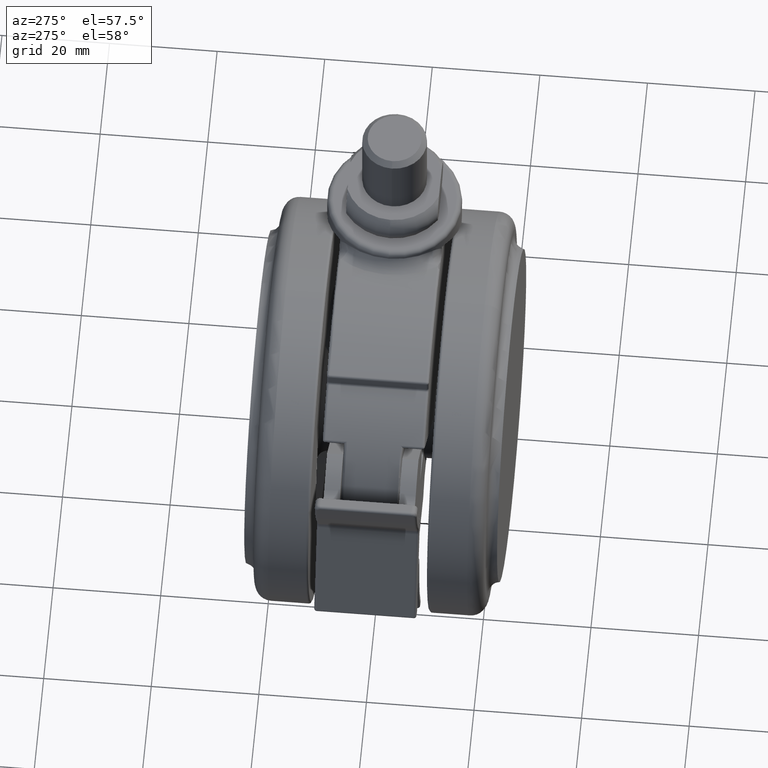
[diagram: clean part render]
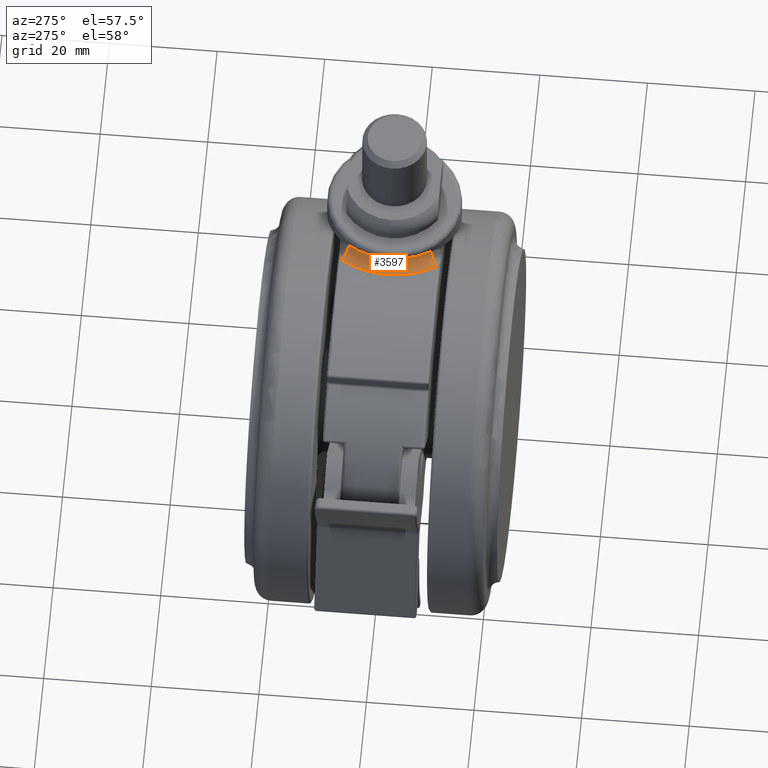
[diagram: same view with one face highlighted and labeled with its STEP entity id]
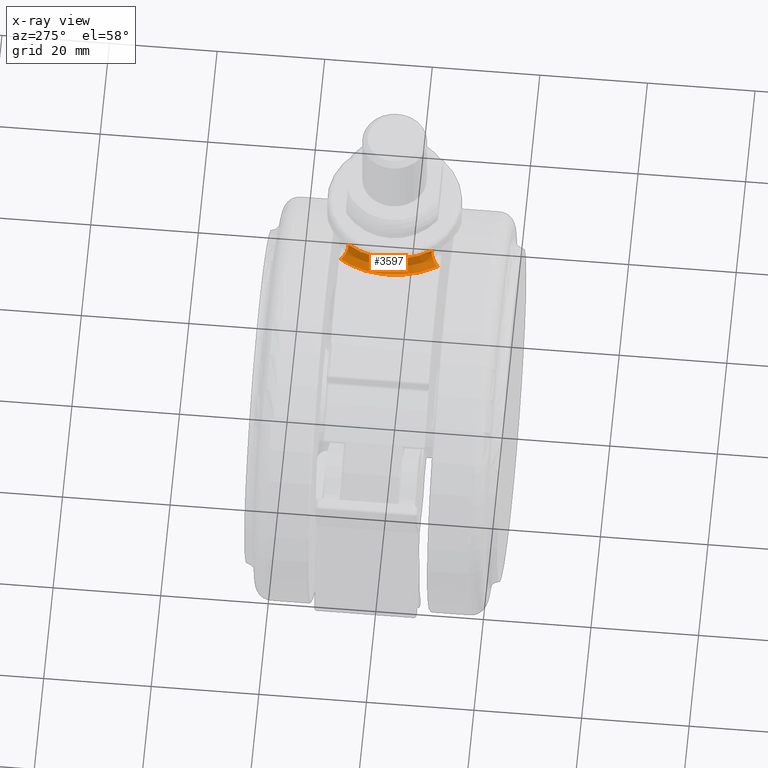
[diagram: x-ray of the same camera — body ghosted, the highlighted face saturated]
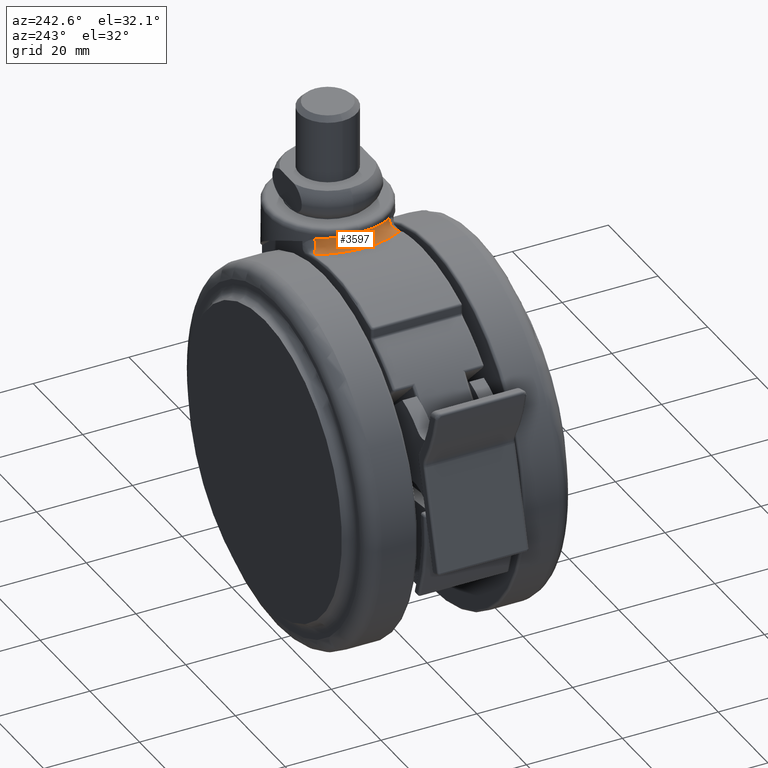
[diagram: same view with one face highlighted and labeled with its STEP entity id]
A machine part, auxiliary view. The second image highlights one B-rep face of the part: STEP entity #3597.
The next image is the same camera in x-ray: the body ghosted, the highlighted face saturated — about 0% of this face is hidden behind the body in this view.
A second angle (auxiliary view) of the same face is appended — the face is thin or edge-on in the first view.
In plain terms, the highlighted face is a freeform B-spline surface patch.
Its self-contained STEP definition (entity closure, byte-faithful):
#125 = CARTESIAN_POINT ( 'NONE',  ( -10.00387822789190500, -7.501971014198679700, -4.309705399789292500 ) ) ;
#153 = CARTESIAN_POINT ( 'NONE',  ( -11.29003087749790700, -5.409977758597722000, -1.605955561507322200 ) ) ;
#157 = CARTESIAN_POINT ( 'NONE',  ( -11.36881700090219900, -8.999999999999799300, -1.954537490956569800 ) ) ;
#183 = CARTESIAN_POINT ( 'NONE',  ( -14.77873273456547500, -0.8035988518365272400, -3.365267360489900800 ) ) ;
#212 = CARTESIAN_POINT ( 'NONE',  ( -12.38764902925202600, 1.706899129396034900, -3.709782561560228200 ) ) ;
#243 = CARTESIAN_POINT ( 'NONE',  ( -11.55916174110943300, 4.770613284342056600, -1.553471477091423500 ) ) ;
#270 = CARTESIAN_POINT ( 'NONE',  ( -11.80583892490691900, 9.000000000000207800, -3.906206478756240900 ) ) ;
#290 = CARTESIAN_POINT ( 'NONE',  ( -14.46055519043960800, 3.201425114573142900, -3.411173859305353800 ) ) ;
#310 = CARTESIAN_POINT ( 'NONE',  ( -12.03197600258147100, -3.459614855445032300, -1.464037963532014200 ) ) ;
#348 = CARTESIAN_POINT ( 'NONE',  ( -11.80583892490720100, -8.999999999999799300, -3.906206478756240100 ) ) ;
#439 = CARTESIAN_POINT ( 'NONE',  ( -11.56263579329884200, 4.762142757172538800, -1.552792187675227800 ) ) ;
#778 = AXIS2_PLACEMENT_3D ( 'NONE', #157, #4914, #833 ) ;
#827 = CARTESIAN_POINT ( 'NONE',  ( -11.62813341630660700, -4.638219213165355000, -3.882104872917183400 ) ) ;
#833 = DIRECTION ( 'NONE',  ( -0.7840563448898070200, -0.6206896551724024900, 0.0000000000000000000 ) ) ;
#858 = CARTESIAN_POINT ( 'NONE',  ( -12.50022857496705700, -0.6927576308935864400, -1.384748286381915200 ) ) ;
#895 = CARTESIAN_POINT ( 'NONE',  ( -14.45399381680682900, 3.233216678118739900, -3.412146396237270500 ) ) ;
#911 =( BOUNDED_SURFACE ( )  B_SPLINE_SURFACE ( 3, 2, ( 
 ( #6196, #125, #1484 ),
 ( #6220, #2178, #6917 ),
 ( #2857, #7553, #3560 ),
 ( #8223, #4252, #153 ),
 ( #4908, #827, #5577 ),
 ( #1514, #6253, #2212 ),
 ( #6950, #2887, #7577 ),
 ( #3586, #8253, #4275 ),
 ( #183, #4942, #858 ),
 ( #5603, #1539, #6288 ),
 ( #2242, #6978, #2921 ),
 ( #7608, #3615, #8283 ),
 ( #4306, #212, #4972 ),
 ( #895, #5627, #1572 ),
 ( #6319, #2270, #7002 ),
 ( #2947, #7642, #3647 ),
 ( #8316, #4341, #243 ),
 ( #5000, #923, #5656 ),
 ( #1599, #6343, #2296 ),
 ( #7028, #2977, #7671 ),
 ( #3680, #8343, #4370 ),
 ( #270, #5028, #949 ) ),
 .UNSPECIFIED., .F., .F., .T. ) 
 B_SPLINE_SURFACE_WITH_KNOTS ( ( 4, 2, 2, 2, 2, 2, 2, 2, 2, 2, 4 ),
 ( 3, 3 ),
 ( 0.04484670150587637800, 0.04727635565138270400, 0.04970600979688903600, 0.05213566394239536900, 0.05456531808790170100, 0.05578014516065486800, 0.05699497223340803400, 0.05942462637891436600, 0.06063945345166753300, 0.06185428052442069900, 0.06428393466992703100 ),
 ( 0.0000000000000000000, 1.000000000000000000 ),
 .UNSPECIFIED. ) 
 GEOMETRIC_REPRESENTATION_ITEM ( )  RATIONAL_B_SPLINE_SURFACE ( (
 ( 1.000000000000000000, 0.6436905676697364200, 1.000000000000000000),
 ( 1.000000000000000000, 0.6446167195811878200, 1.000000000000000000),
 ( 1.000000000000000000, 0.6459663824866793700, 1.000000000000000000),
 ( 1.000000000000000000, 0.6488008187546942000, 1.000000000000000000),
 ( 1.000000000000000000, 0.6502913982318588900, 1.000000000000000000),
 ( 1.000000000000000000, 0.6529308301003523600, 1.000000000000000000),
 ( 1.000000000000000000, 0.6540806104083222200, 1.000000000000000000),
 ( 1.000000000000000000, 0.6556257350229580700, 1.000000000000000000),
 ( 1.000000000000000000, 0.6560349305132873200, 1.000000000000000000),
 ( 1.000000000000000000, 0.6560325418615674500, 1.000000000000000000),
 ( 1.000000000000000000, 0.6559301682245548500, 1.000000000000000000),
 ( 1.000000000000000000, 0.6555237969605876000, 1.000000000000000000),
 ( 1.000000000000000000, 0.6552189024531365200, 1.000000000000000000),
 ( 1.000000000000000000, 0.6540494927733462300, 1.000000000000000000),
 ( 1.000000000000000000, 0.6529229353915987400, 1.000000000000000000),
 ( 1.000000000000000000, 0.6509506497409466300, 1.000000000000000000),
 ( 1.000000000000000000, 0.6502471699235160600, 1.000000000000000000),
 ( 1.000000000000000000, 0.6488029830699276700, 1.000000000000000000),
 ( 1.000000000000000000, 0.6480638441045465400, 1.000000000000000000),
 ( 1.000000000000000000, 0.6459337708149696100, 1.000000000000000000),
 ( 1.000000000000000000, 0.6446147516755581500, 1.000000000000000000),
 ( 1.000000000000000000, 0.6436905676697354300, 1.000000000000000000) ) ) 
 REPRESENTATION_ITEM ( '' )  SURFACE ( )  );
#923 = CARTESIAN_POINT ( 'NONE',  ( -11.35089415407361500, 5.249042571531141700, -3.949889673651641800 ) ) ;
#945 = CARTESIAN_POINT ( 'NONE',  ( -12.71933375164516100, -7.671364508898795600, -3.711651338640235700 ) ) ;
#949 = CARTESIAN_POINT ( 'NONE',  ( -9.800704311122354200, 7.758620689655354700, -1.954537490956574000 ) ) ;
#971 = CARTESIAN_POINT ( 'NONE',  ( -13.89717161774413700, 5.120679773975008500, -3.499709419589013900 ) ) ;
#997 = CARTESIAN_POINT ( 'NONE',  ( -11.28930404226374100, -5.411346617770612400, -1.606111625444742300 ) ) ;
#1020 = CIRCLE ( 'NONE', #778, 1.999999999999999300 ) ;
#1124 = CARTESIAN_POINT ( 'NONE',  ( -12.03351875885955000, 3.453605914257576300, -1.463773444533736700 ) ) ;
#1484 = CARTESIAN_POINT ( 'NONE',  ( -9.800704311122588700, -7.758620689655004700, -1.954537490956508500 ) ) ;
#1514 = CARTESIAN_POINT ( 'NONE',  ( -14.26410270560532600, -4.009457523853277500, -3.440381182265532400 ) ) ;
#1539 = CARTESIAN_POINT ( 'NONE',  ( -12.49989066632533900, 0.3434227209801028500, -3.685703853844811500 ) ) ;
#1572 = CARTESIAN_POINT ( 'NONE',  ( -12.20535070704289500, 2.787255756967012700, -1.434127537485408300 ) ) ;
#1599 = CARTESIAN_POINT ( 'NONE',  ( -13.25494946504402100, 6.642797806996770600, -3.611115861060902400 ) ) ;
#1629 = CARTESIAN_POINT ( 'NONE',  ( -13.76673725347666100, -5.515690235254416200, -3.520798847902592200 ) ) ;
#1659 = CARTESIAN_POINT ( 'NONE',  ( -13.44440981816782200, 6.240356713991120700, -3.577115905190118500 ) ) ;
#1675 = CARTESIAN_POINT ( 'NONE',  ( -10.23316483469823400, -7.212335739361000400, -1.842206000191077800 ) ) ;
#1807 = CARTESIAN_POINT ( 'NONE',  ( -12.38220688136235400, 1.747308881599990000, -1.404181937845039500 ) ) ;
#1881 = B_SPLINE_CURVE_WITH_KNOTS ( 'NONE', 3,
 ( #4367, #8340, #945, #5682, #1629, #6369, #2319, #7052, #3002, #7693, #3705, #8371, #4395, #290, #5047, #971, #5710, #1659, #6393, #2340, #7078, #3032 ),
 .UNSPECIFIED., .F., .F.,
 ( 4, 2, 2, 2, 2, 2, 2, 2, 2, 2, 4 ),
 ( 0.0000000000000000000, 0.002433144462994349000, 0.004866288925988697900, 0.007299433388983046400, 0.009732577851977395800, 0.01094915008347457100, 0.01216572231497174500, 0.01459886677796609300, 0.01581543900946326800, 0.01703201124096044600, 0.01946515570395479500 ),
 .UNSPECIFIED. ) ;
#2178 = CARTESIAN_POINT ( 'NONE',  ( -10.39269488121259900, -6.981619550544314400, -4.198178878333975700 ) ) ;
#2212 = CARTESIAN_POINT ( 'NONE',  ( -12.03292084776800200, -3.456428899935980700, -1.463868178439487800 ) ) ;
#2242 = CARTESIAN_POINT ( 'NONE',  ( -14.76221305837038300, 0.8141330269039298600, -3.367579257789394400 ) ) ;
#2270 = CARTESIAN_POINT ( 'NONE',  ( -12.05705755590425500, 3.366617030126137800, -3.782355860645665300 ) ) ;
#2296 = CARTESIAN_POINT ( 'NONE',  ( -11.11656330741307000, 5.726549833671270100, -1.643708706843317800 ) ) ;
#2319 = CARTESIAN_POINT ( 'NONE',  ( -14.46233037150766300, -3.193139030446999100, -3.410910313829803800 ) ) ;
#2323 = ORIENTED_EDGE ( 'NONE', *, *, #3285, .F. ) ;
#2340 = CARTESIAN_POINT ( 'NONE',  ( -12.71572096823816400, 7.677998888504805400, -3.712341789016044400 ) ) ;
#2490 = CARTESIAN_POINT ( 'NONE',  ( -12.48548264933146800, 0.6971431864744199700, -1.387141981265432900 ) ) ;
#2616 = EDGE_CURVE ( 'NONE', #5123, #4415, #4631, .T. ) ;
#2857 = CARTESIAN_POINT ( 'NONE',  ( -12.70918893234493800, -7.688208185669222600, -3.713663156569747800 ) ) ;
#2887 = CARTESIAN_POINT ( 'NONE',  ( -12.22571392365599700, -2.692650237302261400, -3.745105666753715500 ) ) ;
#2921 = CARTESIAN_POINT ( 'NONE',  ( -12.48522794943108100, 0.7018388162863493700, -1.387183484840334400 ) ) ;
#2947 = CARTESIAN_POINT ( 'NONE',  ( -13.88394565876725300, 5.157534995310437700, -3.501888834542328200 ) ) ;
#2977 = CARTESIAN_POINT ( 'NONE',  ( -10.74099297130630300, 6.432905321320168600, -4.104891631931407900 ) ) ;
#3002 = CARTESIAN_POINT ( 'NONE',  ( -14.77833516021256700, -0.8047802647944869400, -3.365323263524405900 ) ) ;
#3028 = CARTESIAN_POINT ( 'NONE',  ( -12.50000000000000000, 2.869450499157187200E-011, -1.384785568784175000 ) ) ;
#3032 = CARTESIAN_POINT ( 'NONE',  ( -11.80583892490692000, 9.000000000000199000, -3.906206478756300000 ) ) ;
#3158 = CARTESIAN_POINT ( 'NONE',  ( -10.23288540953868700, 7.212688709750463700, -1.842278580792119400 ) ) ;
#3184 = CARTESIAN_POINT ( 'NONE',  ( -12.50000000000000000, 2.869450499157187200E-011, -1.384785568784175000 ) ) ;
#3218 = CARTESIAN_POINT ( 'NONE',  ( -11.36881700090194000, 9.000000000000199000, -1.954537490956624900 ) ) ;
#3285 = EDGE_CURVE ( 'NONE', #5123, #4178, #5628, .T. ) ;
#3560 = CARTESIAN_POINT ( 'NONE',  ( -10.62098765132848900, -6.627765677338469900, -1.751725191899736100 ) ) ;
#3586 = CARTESIAN_POINT ( 'NONE',  ( -14.71525570157307600, -1.608013559662115000, -3.374022462835994500 ) ) ;
#3597 = ADVANCED_FACE ( 'NONE', ( #7395 ), #911, .F. ) ;
#3615 = CARTESIAN_POINT ( 'NONE',  ( -12.42994016269599000, 1.365630475449260800, -3.700683218444595500 ) ) ;
#3647 = CARTESIAN_POINT ( 'NONE',  ( -11.68772077066061500, 4.446150858040095200, -1.528656239166671100 ) ) ;
#3680 = CARTESIAN_POINT ( 'NONE',  ( -12.27766593581125700, 8.372199880409128900, -3.800553958071672100 ) ) ;
#3705 = CARTESIAN_POINT ( 'NONE',  ( -14.76286249200867000, 0.8001164787444028400, -3.367488309329601700 ) ) ;
#3851 = CARTESIAN_POINT ( 'NONE',  ( -10.61737033842575600, 6.633858516677821400, -1.752537952465582000 ) ) ;
#3918 = DIRECTION ( 'NONE',  ( -0.7840563448897889300, 0.6206896551724252500, 0.0000000000000000000 ) ) ;
#3970 = ORIENTED_EDGE ( 'NONE', *, *, #5573, .F. ) ;
#4178 = VERTEX_POINT ( 'NONE', #6124 ) ;
#4252 = CARTESIAN_POINT ( 'NONE',  ( -11.36493503213212200, -5.249211167221782900, -3.945290966279321000 ) ) ;
#4275 = CARTESIAN_POINT ( 'NONE',  ( -12.44258851043211700, -1.386218585885863300, -1.393970327399974600 ) ) ;
#4306 = CARTESIAN_POINT ( 'NONE',  ( -14.64791410779482900, 2.033247820386641100, -3.383838506898468000 ) ) ;
#4341 = CARTESIAN_POINT ( 'NONE',  ( -11.61601016813185800, 4.631767738246596300, -3.885428193609642600 ) ) ;
#4367 = CARTESIAN_POINT ( 'NONE',  ( -11.80583892490720100, -8.999999999999799300, -3.906206478756240100 ) ) ;
#4370 = CARTESIAN_POINT ( 'NONE',  ( -10.22913869206102800, 7.217421570345753600, -1.843251790289615500 ) ) ;
#4392 = CARTESIAN_POINT ( 'NONE',  ( -12.50000000000160000, -0.6967222027224853100, -1.384785568783912800 ) ) ;
#4395 = CARTESIAN_POINT ( 'NONE',  ( -14.65106184547922300, 2.009139325001239500, -3.383386752798714300 ) ) ;
#4415 = VERTEX_POINT ( 'NONE', #4577 ) ;
#4418 = CARTESIAN_POINT ( 'NONE',  ( -12.20936245464922700, -2.769630326085725300, -1.433436031539663000 ) ) ;
#4536 = CARTESIAN_POINT ( 'NONE',  ( -11.27798686458381500, 5.401811030611991500, -1.610081209059384100 ) ) ;
#4577 = CARTESIAN_POINT ( 'NONE',  ( -11.80583892490692000, 9.000000000000199000, -3.906206478756300000 ) ) ;
#4631 = CIRCLE ( 'NONE', #6471, 2.000000000000001300 ) ;
#4908 = CARTESIAN_POINT ( 'NONE',  ( -13.75740914328862800, -5.539886852162640100, -3.522359133074404600 ) ) ;
#4914 = DIRECTION ( 'NONE',  ( -0.6147801558790960700, 0.7765914542195229100, 0.1376628968548940000 ) ) ;
#4942 = CARTESIAN_POINT ( 'NONE',  ( -12.50021674241227400, -0.6748257799771526500, -3.685634308836894600 ) ) ;
#4972 = CARTESIAN_POINT ( 'NONE',  ( -12.38143924739416800, 1.752799845176854300, -1.404309893875311400 ) ) ;
#5000 = CARTESIAN_POINT ( 'NONE',  ( -13.42780526189368700, 6.276942187451378900, -3.580063116712092400 ) ) ;
#5028 = CARTESIAN_POINT ( 'NONE',  ( -10.00387822789169300, 7.501971014199014600, -4.309705399789360800 ) ) ;
#5047 = CARTESIAN_POINT ( 'NONE',  ( -14.27199484134090400, 3.979332644004980800, -3.439184762139114500 ) ) ;
#5069 = CARTESIAN_POINT ( 'NONE',  ( -11.57190963193746400, -4.777895870044183400, -1.550396673996674600 ) ) ;
#5104 = VERTEX_POINT ( 'NONE', #7893 ) ;
#5123 = VERTEX_POINT ( 'NONE', #7929 ) ;
#5195 = CARTESIAN_POINT ( 'NONE',  ( -11.69077132150132800, 4.438086050435169100, -1.528072952406501800 ) ) ;
#5573 = EDGE_CURVE ( 'NONE', #5104, #6911, #1020, .T. ) ;
#5577 = CARTESIAN_POINT ( 'NONE',  ( -11.57281979662991500, -4.775764527663940700, -1.550218287051912100 ) ) ;
#5603 = CARTESIAN_POINT ( 'NONE',  ( -14.77835403436817600, 0.4089545887726734900, -3.365320609626290000 ) ) ;
#5627 = CARTESIAN_POINT ( 'NONE',  ( -12.22119093489626900, 2.713074913221552400, -3.746103444554892600 ) ) ;
#5628 = B_SPLINE_CURVE_WITH_KNOTS ( 'NONE', 3,
 ( #7837, #3158, #3851, #8521, #4536, #439, #5195, #1124, #5861, #1807, #6546, #2490, #7226, #3184 ),
 .UNSPECIFIED., .F., .F.,
 ( 4, 2, 2, 2, 2, 2, 4 ),
 ( 0.0000000000000000000, 0.002100996490530544500, 0.003151494735795817800, 0.004201992981061091600, 0.006302989471591637400, 0.007353487716856911200, 0.008403985962122183200 ),
 .UNSPECIFIED. ) ;
#5656 = CARTESIAN_POINT ( 'NONE',  ( -11.27352431839457100, 5.411157058193303700, -1.610999816412539200 ) ) ;
#5682 = CARTESIAN_POINT ( 'NONE',  ( -13.45667544474254900, -6.252393314288934100, -3.573375431617505300 ) ) ;
#5710 = CARTESIAN_POINT ( 'NONE',  ( -13.75682373942462900, 5.496854230182186100, -3.523008739348636900 ) ) ;
#5735 = CARTESIAN_POINT ( 'NONE',  ( -10.62133095665980600, -6.627094890329384000, -1.751652691912444400 ) ) ;
#5861 = CARTESIAN_POINT ( 'NONE',  ( -12.20675224644967800, 2.780960610310266600, -1.433886200978378800 ) ) ;
#6122 = EDGE_LOOP ( 'NONE', ( #7849, #6750, #3970, #7937, #2323 ) ) ;
#6124 = CARTESIAN_POINT ( 'NONE',  ( -12.50000000000000000, 2.869450499157187200E-011, -1.384785568784175000 ) ) ;
#6196 = CARTESIAN_POINT ( 'NONE',  ( -11.80583892490717600, -8.999999999999809900, -3.906206478756179200 ) ) ;
#6220 = CARTESIAN_POINT ( 'NONE',  ( -12.27961797063729900, -8.369602557302929600, -3.800116854228379200 ) ) ;
#6253 = CARTESIAN_POINT ( 'NONE',  ( -12.05830869847357600, -3.362648631589590500, -3.782068017310765500 ) ) ;
#6288 = CARTESIAN_POINT ( 'NONE',  ( -12.49988469792359100, 0.3525470592868075700, -1.384804375473415400 ) ) ;
#6319 = CARTESIAN_POINT ( 'NONE',  ( -14.26262791744813500, 4.014226808755746700, -3.440615714069474000 ) ) ;
#6343 = CARTESIAN_POINT ( 'NONE',  ( -11.20571701339621200, 5.552444892520703900, -3.985973775710013100 ) ) ;
#6369 = CARTESIAN_POINT ( 'NONE',  ( -14.26965428946589900, -3.988591974172911200, -3.439535616074076400 ) ) ;
#6393 = CARTESIAN_POINT ( 'NONE',  ( -13.27228778837124200, 6.607394942648217500, -3.607947769029147700 ) ) ;
#6413 = CARTESIAN_POINT ( 'NONE',  ( -9.800704311122590400, -7.758620689654999400, -1.954537490956569800 ) ) ;
#6471 = AXIS2_PLACEMENT_3D ( 'NONE', #3218, #7892, #3918 ) ;
#6546 = CARTESIAN_POINT ( 'NONE',  ( -12.42666126989931600, 1.396916351249774900, -1.396826883498183200 ) ) ;
#6750 = ORIENTED_EDGE ( 'NONE', *, *, #8412, .F. ) ;
#6911 = VERTEX_POINT ( 'NONE', #348 ) ;
#6917 = CARTESIAN_POINT ( 'NONE',  ( -10.23093150732624000, -7.215156882716042800, -1.842786106866271600 ) ) ;
#6950 = CARTESIAN_POINT ( 'NONE',  ( -14.45927265481329400, -3.208818957581557600, -3.411361970597218000 ) ) ;
#6978 = CARTESIAN_POINT ( 'NONE',  ( -12.48597744563084800, 0.6837785532725965100, -3.688662625138012400 ) ) ;
#7002 = CARTESIAN_POINT ( 'NONE',  ( -12.03158167205374700, 3.460540352347943200, -1.464115218589007400 ) ) ;
#7028 = CARTESIAN_POINT ( 'NONE',  ( -12.69960086889266800, 7.704609427442551200, -3.715545518965826900 ) ) ;
#7052 = CARTESIAN_POINT ( 'NONE',  ( -14.71545526549742400, -1.603279406154955100, -3.373999062487971700 ) ) ;
#7078 = CARTESIAN_POINT ( 'NONE',  ( -12.28907039948639800, 8.357025413212014100, -3.798000245998260000 ) ) ;
#7226 = CARTESIAN_POINT ( 'NONE',  ( -12.49999999999920400, 0.3481409238785143100, -1.384785568784303400 ) ) ;
#7253 = B_SPLINE_CURVE_WITH_KNOTS ( 'NONE', 3,
 ( #3028, #4392, #8394, #4418, #310, #5069, #997, #5735, #1675, #6413 ),
 .UNSPECIFIED., .F., .F.,
 ( 4, 2, 2, 2, 4 ),
 ( 0.008403985962122183200, 0.01050631120252740900, 0.01260863644293263600, 0.01471096168333786000, 0.01681328692374308600 ),
 .UNSPECIFIED. ) ;
#7395 = FACE_OUTER_BOUND ( 'NONE', #6122, .T. ) ;
#7421 = EDGE_CURVE ( 'NONE', #4178, #5104, #7253, .T. ) ;
#7553 = CARTESIAN_POINT ( 'NONE',  ( -10.74897612832377500, -6.419335665259256800, -4.102790449905606700 ) ) ;
#7577 = CARTESIAN_POINT ( 'NONE',  ( -12.21014413502213400, -2.766223239324191700, -1.433301275816341900 ) ) ;
#7608 = CARTESIAN_POINT ( 'NONE',  ( -14.69707179396114300, 1.626530495829026500, -3.376826177385430700 ) ) ;
#7642 = CARTESIAN_POINT ( 'NONE',  ( -11.73588996651002100, 4.318565699653575500, -3.857047753391942300 ) ) ;
#7671 = CARTESIAN_POINT ( 'NONE',  ( -10.61228124861605000, 6.641904678723070900, -1.753707946925670000 ) ) ;
#7693 = CARTESIAN_POINT ( 'NONE',  ( -14.77855356133890500, 0.3982309277750187800, -3.365292554086369800 ) ) ;
#7837 = CARTESIAN_POINT ( 'NONE',  ( -9.800704311122359500, 7.758620689655350200, -1.954537490956624900 ) ) ;
#7849 = ORIENTED_EDGE ( 'NONE', *, *, #2616, .T. ) ;
#7892 = DIRECTION ( 'NONE',  ( 0.6147801558791191600, 0.7765914542195031500, -0.1376628968549030200 ) ) ;
#7893 = CARTESIAN_POINT ( 'NONE',  ( -9.800704311122590400, -7.758620689654999400, -1.954537490956569800 ) ) ;
#7929 = CARTESIAN_POINT ( 'NONE',  ( -9.800704311122359500, 7.758620689655350200, -1.954537490956624900 ) ) ;
#7937 = ORIENTED_EDGE ( 'NONE', *, *, #7421, .F. ) ;
#8223 = CARTESIAN_POINT ( 'NONE',  ( -13.44598337155253300, -6.275574200016770000, -3.575274267550878200 ) ) ;
#8253 = CARTESIAN_POINT ( 'NONE',  ( -12.44533146182879000, -1.351114693501114700, -3.697207536290607200 ) ) ;
#8283 = CARTESIAN_POINT ( 'NONE',  ( -12.42607668659405500, 1.402181461931724300, -1.396923573543814800 ) ) ;
#8316 = CARTESIAN_POINT ( 'NONE',  ( -13.74236799350950400, 5.533911409889630500, -3.525447604968885400 ) ) ;
#8340 = CARTESIAN_POINT ( 'NONE',  ( -12.28908347849011800, -8.357008010647227500, -3.797997317319584500 ) ) ;
#8343 = CARTESIAN_POINT ( 'NONE',  ( -10.39110348638190100, 6.983749305816072500, -4.198635347331483900 ) ) ;
#8371 = CARTESIAN_POINT ( 'NONE',  ( -14.69919688183547300, 1.605694505952603800, -3.376523330406665700 ) ) ;
#8394 = CARTESIAN_POINT ( 'NONE',  ( -12.44215598327031800, -1.390013733796367600, -1.394041035653304000 ) ) ;
#8412 = EDGE_CURVE ( 'NONE', #6911, #4415, #1881, .T. ) ;
#8521 = CARTESIAN_POINT ( 'NONE',  ( -11.12152493988276600, 5.716934575645527000, -1.642657052712366100 ) ) ;